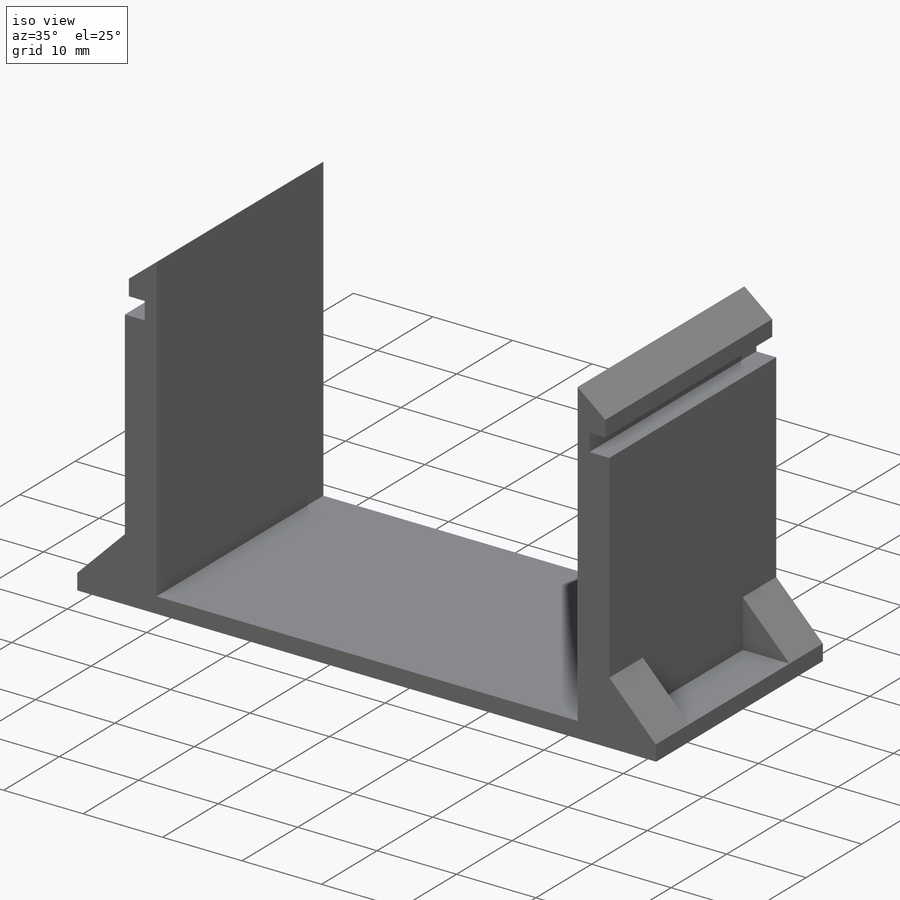
[diagram: iso view]
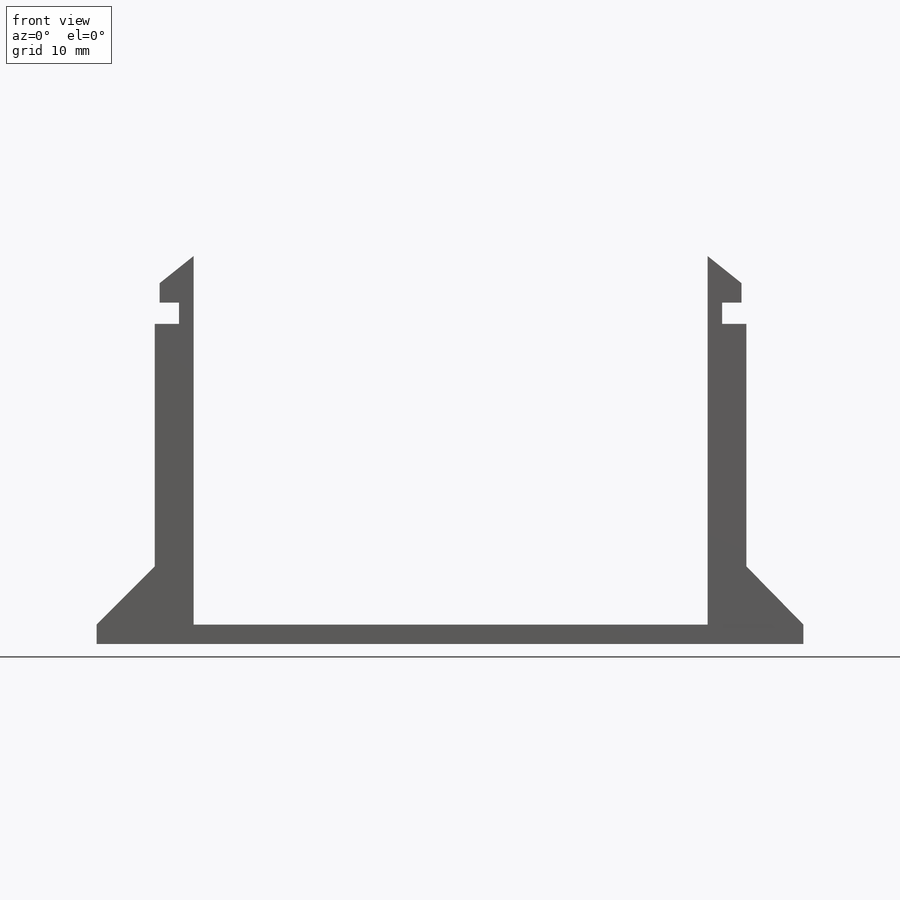
[diagram: front view]
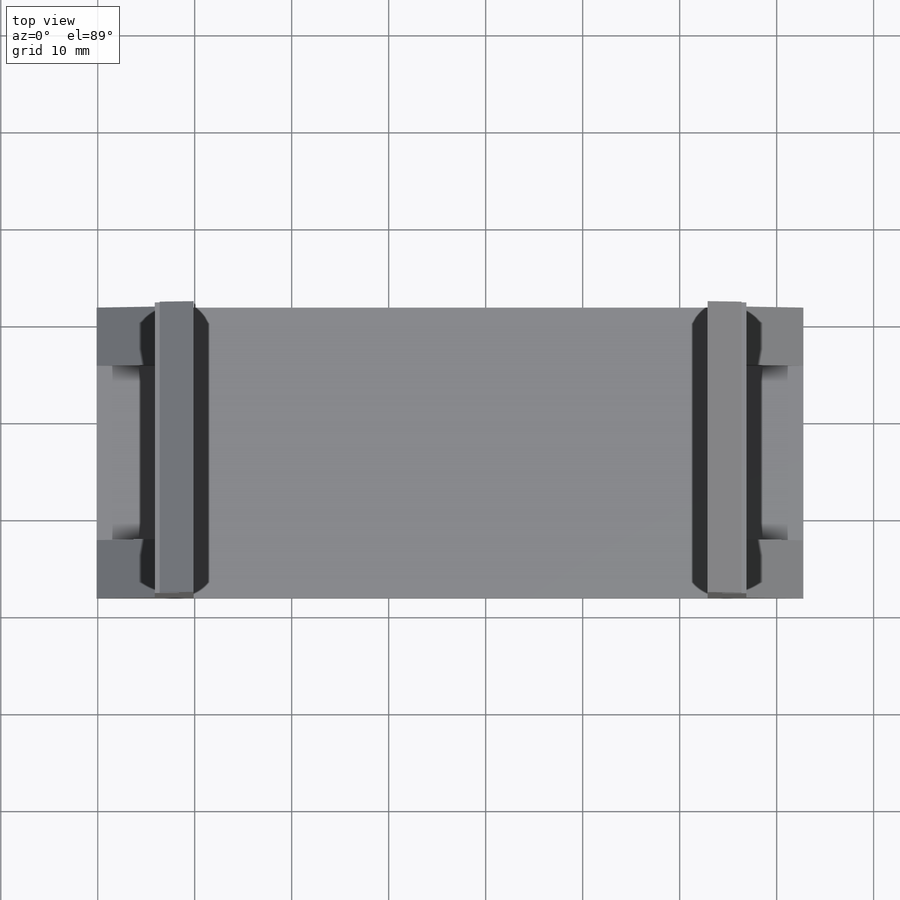
[diagram: top view]
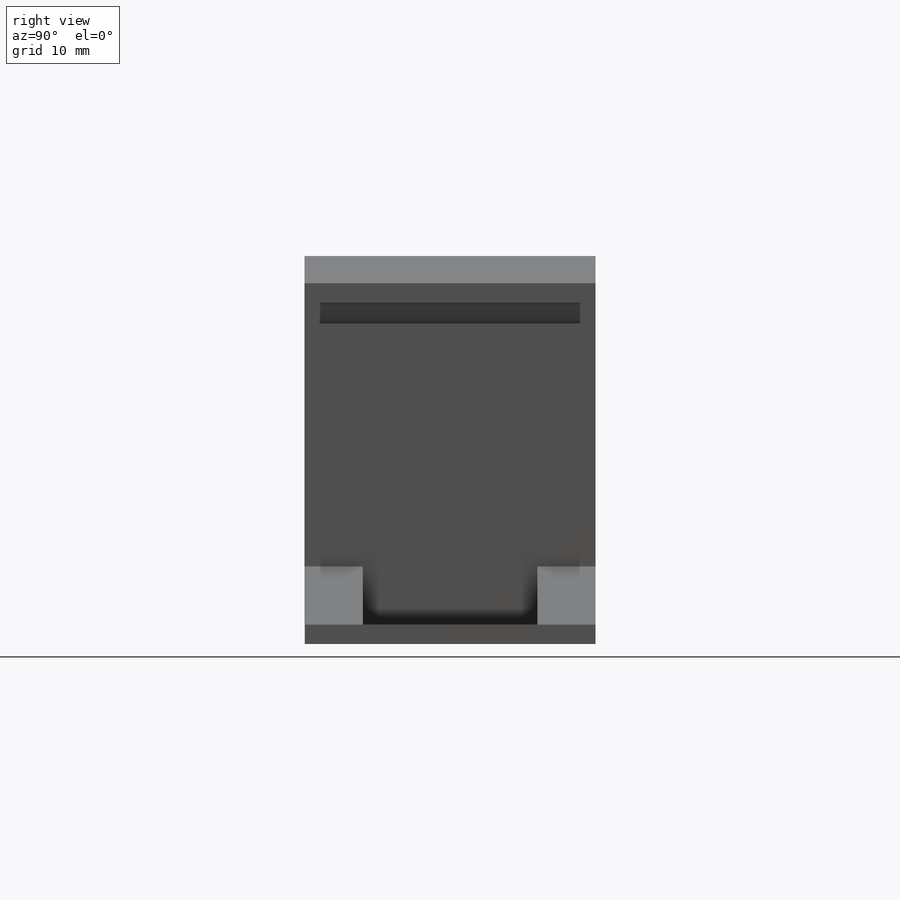
[diagram: right view]
SOLIDWORKS PART (.sldprt)
format: sldprt  version: not decoded by parser v0  size: 336,384 bytes
history: native  units: mm
features: sketch x12, extrude x6, cut_extrude x6, material x1 (+12 scaffold rows collapsed)
feature tree (37):
  scaffold x12  (default folders/planes/origin — collapsed)
  material  "Material <not specified>"
  sketch  "Sketch2"  dims[c1.D1=30.0mm c1.D2=65.0mm c1.D3=15.0mm c1.D4=26.5mm c1.D5=26.5mm c1.D6=4.0mm c1.D7=4.0mm c2.D6=4.0mm c2.D7=4.0mm]
  extrude  "Boss-Extrude1"  Depth=38mm
  sketch  "Sketch3"  dims[D1=10.0mm D2=10.0mm D3=10.0mm D4=10.0mm]
  extrude  "Boss-Extrude3"  Depth=2mm
  sketch  "Sketch6"  dims[D1=6.0mm D2=5.8mm]
  extrude  "Boss-Extrude4"  Depth=6mm
  sketch  "Sketch7"  dims[D1=6.0mm]
  extrude  "Boss-Extrude5"  Depth=6mm
  sketch  "Sketch8"  dims[D1=6.0mm]
  sketch  "Sketch9"  dims[D1=6.0mm D2=6.0mm]
  extrude  "Boss-Extrude7"  Depth=6mm
  extrude  "Boss-Extrude8"  Depth=6mm
  sketch  "Sketch17"  dims[D1=31.0mm]
  cut_extrude  "Cut-Extrude9"  Depth=0.5mm
  sketch  "Sketch18"  dims[D1=2.2mm D2=2.2mm]
  cut_extrude  "Cut-Extrude10"  Depth=2mm
  sketch  "Sketch19"  dims[D1=2.0mm]
  cut_extrude  "Cut-Extrude11"  [1 undecoded]
  sketch  "Sketch20"  dims[D1=31.0mm]
  cut_extrude  "Cut-Extrude12"  Depth=0.5mm
  sketch  "Sketch21"  dims[D1=2.2mm D2=2.2mm]
  cut_extrude  "Cut-Extrude13"  Depth=2mm
  sketch  "Sketch22"  dims[D1=2.0mm]
  cut_extrude  "Cut-Extrude14"  [1 undecoded]
decode coverage: 22 of 24 modeling features carry decoded parameters
note: 2 parameter values undecoded
note: suppression state not decoded; provenance and decode notes live in map.json
